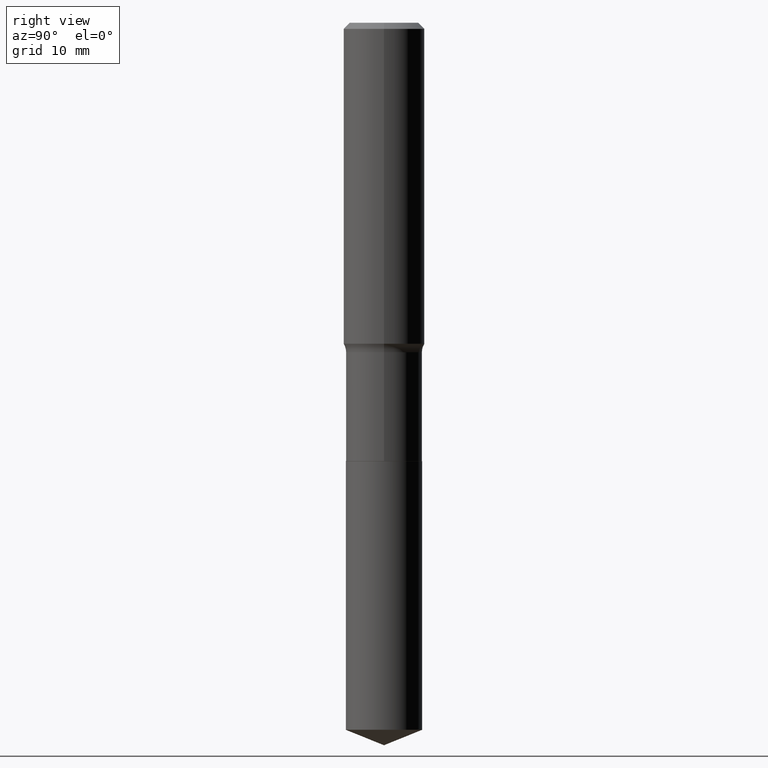
[diagram: clean part render]
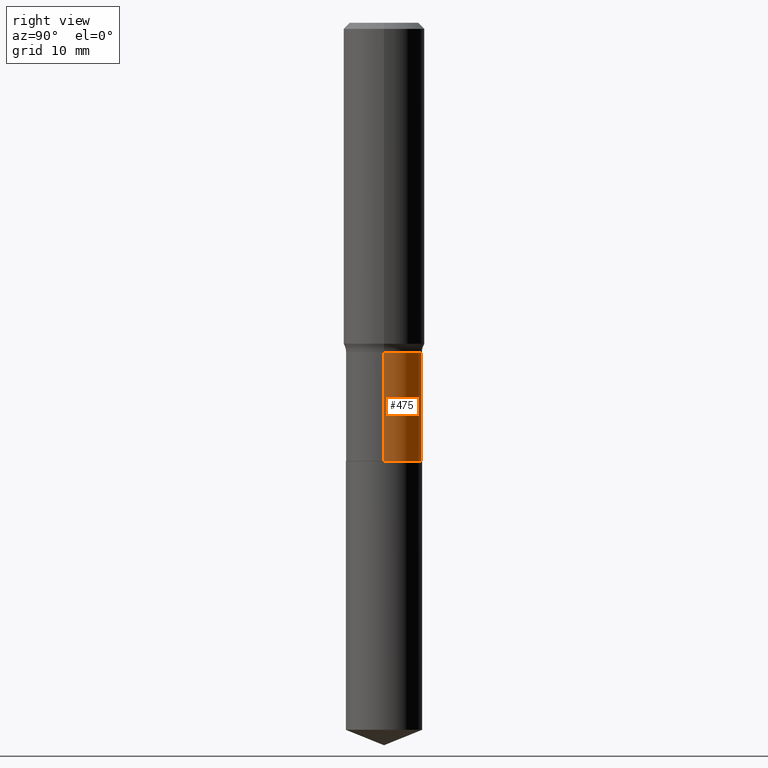
[diagram: same view with one face highlighted and labeled with its STEP entity id]
A machine part, right view. The second image highlights one B-rep face of the part: STEP entity #475.
In plain terms, the highlighted cylindrical surface (partial cylindrical patch) has radius 4.7003 mm, axis along (-0, 0, 1).
Its self-contained STEP definition (entity closure, byte-faithful):
#12 = CYLINDRICAL_SURFACE ( 'NONE', #346, 0.1850499999999999368 ) ;
#18 = CARTESIAN_POINT ( 'NONE',  ( -0.1850499999999999923, -5.185231476000217823E-15, -2.125399999999999956 ) ) ;
#33 = VECTOR ( 'NONE', #40, 39.37007874015748143 ) ;
#40 = DIRECTION ( 'NONE',  ( -2.445468806185136877E-29, 3.491481338843145188E-15, 1.000000000000000000 ) ) ;
#52 = DIRECTION ( 'NONE',  ( 1.000000000000000000, -6.982962677686265133E-15, 0.000000000000000000 ) ) ;
#58 = CARTESIAN_POINT ( 'NONE',  ( -0.1850499999999999090, -5.185231476000217823E-15, -1.597999999999999643 ) ) ;
#66 = VECTOR ( 'NONE', #338, 39.37007874015748143 ) ;
#67 = AXIS2_PLACEMENT_3D ( 'NONE', #236, #480, #72 ) ;
#72 = DIRECTION ( 'NONE',  ( 1.000000000000000000, -6.982962677686267499E-15, 0.000000000000000000 ) ) ;
#127 = VERTEX_POINT ( 'NONE', #58 ) ;
#137 = ORIENTED_EDGE ( 'NONE', *, *, #173, .T. ) ;
#143 = CARTESIAN_POINT ( 'NONE',  ( -0.1850499999999999368, 1.314859332524064945E-15, -9.102489384516700747E-30 ) ) ;
#169 = ORIENTED_EDGE ( 'NONE', *, *, #438, .F. ) ;
#173 = EDGE_CURVE ( 'NONE', #198, #127, #474, .T. ) ;
#174 = DIRECTION ( 'NONE',  ( -2.445468806185136597E-29, 3.491481338843145583E-15, 1.000000000000000000 ) ) ;
#198 = VERTEX_POINT ( 'NONE', #18 ) ;
#200 = CIRCLE ( 'NONE', #469, 0.1850499999999999090 ) ;
#201 = CARTESIAN_POINT ( 'NONE',  ( 0.1850499999999999090, -6.871584422977188194E-15, -1.597999999999999643 ) ) ;
#236 = CARTESIAN_POINT ( 'NONE',  ( 5.197599400665889285E-29, -7.420794437577220826E-15, -2.125399999999999956 ) ) ;
#240 = EDGE_LOOP ( 'NONE', ( #354, #137, #169, #489 ) ) ;
#249 = FACE_OUTER_BOUND ( 'NONE', #240, .T. ) ;
#254 = EDGE_CURVE ( 'NONE', #446, #481, #341, .T. ) ;
#283 = DIRECTION ( 'NONE',  ( 1.000000000000000000, -6.982962677686267499E-15, 4.876176775795935793E-29 ) ) ;
#291 = EDGE_CURVE ( 'NONE', #446, #198, #389, .T. ) ;
#338 = DIRECTION ( 'NONE',  ( -2.445468806185136877E-29, 3.491481338843145188E-15, 1.000000000000000000 ) ) ;
#341 = LINE ( 'NONE', #349, #33 ) ;
#346 = AXIS2_PLACEMENT_3D ( 'NONE', #398, #174, #283 ) ;
#349 = CARTESIAN_POINT ( 'NONE',  ( 0.1850499999999999368, -1.292197243505843287E-15, 9.023365123610376264E-30 ) ) ;
#354 = ORIENTED_EDGE ( 'NONE', *, *, #291, .T. ) ;
#389 = CIRCLE ( 'NONE', #67, 0.1850499999999999923 ) ;
#394 = CARTESIAN_POINT ( 'NONE',  ( 3.907859152283848022E-29, -5.579387179471346287E-15, -1.597999999999999643 ) ) ;
#398 = CARTESIAN_POINT ( 'NONE',  ( 0.000000000000000000, 0.000000000000000000, 0.000000000000000000 ) ) ;
#429 = DIRECTION ( 'NONE',  ( -2.445468806185136597E-29, 3.491481338843145583E-15, 1.000000000000000000 ) ) ;
#438 = EDGE_CURVE ( 'NONE', #481, #127, #200, .T. ) ;
#446 = VERTEX_POINT ( 'NONE', #463 ) ;
#463 = CARTESIAN_POINT ( 'NONE',  ( 0.1850499999999999923, -8.712991681083064311E-15, -2.125399999999999956 ) ) ;
#469 = AXIS2_PLACEMENT_3D ( 'NONE', #394, #429, #52 ) ;
#474 = LINE ( 'NONE', #143, #66 ) ;
#475 = ADVANCED_FACE ( 'NONE', ( #249 ), #12, .T. ) ;
#480 = DIRECTION ( 'NONE',  ( -2.445468806185136597E-29, 3.491481338843145583E-15, 1.000000000000000000 ) ) ;
#481 = VERTEX_POINT ( 'NONE', #201 ) ;
#489 = ORIENTED_EDGE ( 'NONE', *, *, #254, .F. ) ;